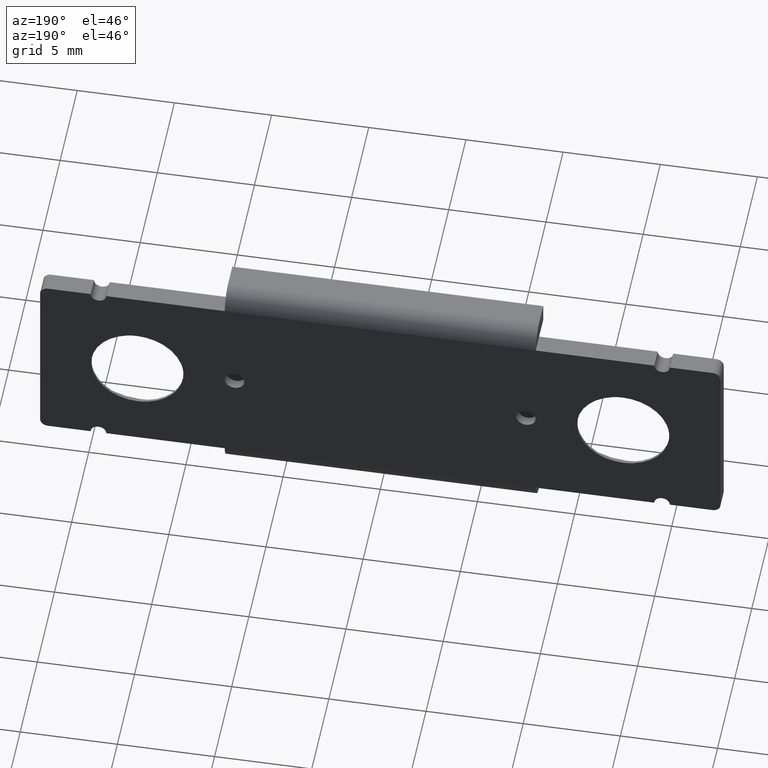
[diagram: clean part render]
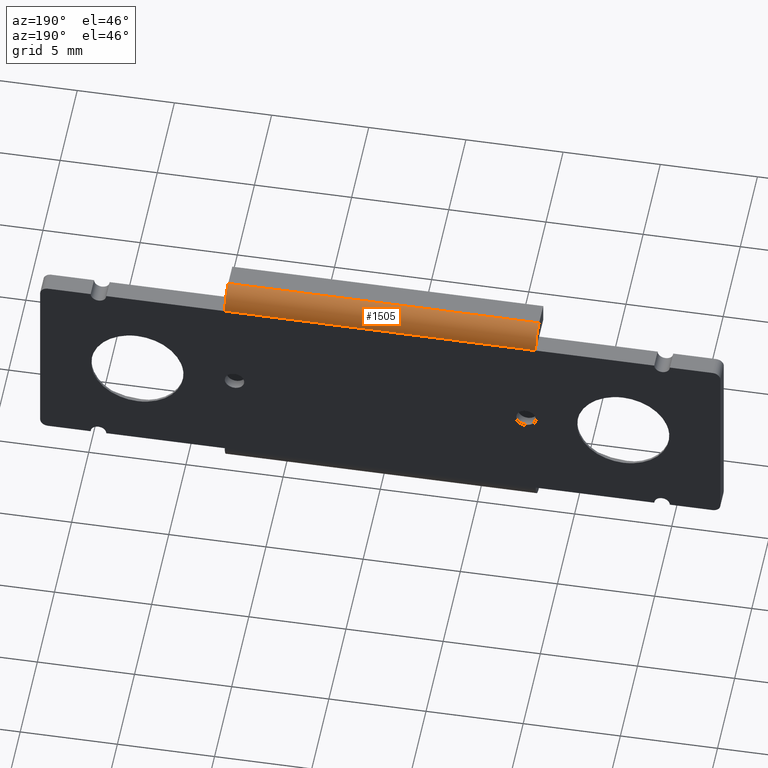
[diagram: same view with one face highlighted and labeled with its STEP entity id]
A machine part, auxiliary view. The second image highlights one B-rep face of the part: STEP entity #1505.
In plain terms, the highlighted face is a freeform B-spline surface patch.
Its self-contained STEP definition (entity closure, byte-faithful):
#1430=CARTESIAN_POINT('',(-8.0,-1.000000000000014,5.999999500000120));
#1431=VERTEX_POINT('',#1430);
#1438=CARTESIAN_POINT('',(8.0,-1.000000000000014,5.999999500000120));
#1439=VERTEX_POINT('',#1438);
#1445=CARTESIAN_POINT('',(8.0,-1.000000000000014,5.999999500000120));
#1446=CARTESIAN_POINT('',(-8.0,-1.000000000000014,5.999999500000120));
#1447=QUASI_UNIFORM_CURVE('',1,(#1445,#1446),.UNSPECIFIED.,.F.,.U.);
#1448=EDGE_CURVE('',#1439,#1431,#1447,.T.);
#1453=CARTESIAN_POINT('',(8.400000000000000,-0.000038072572701,4.991273464482590));
#1454=CARTESIAN_POINT('',(-8.410000000000000,-0.000038072572701,4.991273464482590));
#1455=CARTESIAN_POINT('',(8.400000000000000,0.009157250228167,6.045013469643136));
#1456=CARTESIAN_POINT('',(-8.410000000000002,0.009157250228167,6.045013469643136));
#1457=CARTESIAN_POINT('',(8.400000000000000,-1.043619886889336,5.999047699772165));
#1458=CARTESIAN_POINT('',(-8.410000000000000,-1.043619886889336,5.999047699772165));
#1466=(BOUNDED_SURFACE()B_SPLINE_SURFACE(1,2,((#1453,#1455,#1457),(#1454,#1456,#1458)),.UNSPECIFIED.,.F.,.F.,.U.)B_SPLINE_SURFACE_WITH_KNOTS((2,2),(3,3),(0.0,16.809999999999999),(0.0,1.0),.UNSPECIFIED.)GEOMETRIC_REPRESENTATION_ITEM()RATIONAL_B_SPLINE_SURFACE(((1.0,0.688354575693754,1.0),(1.0,0.688354575693754,1.0)))REPRESENTATION_ITEM('')SURFACE());
#1467=CARTESIAN_POINT('',(-8.0,-1.421085E-014,5.000000500000170));
#1468=VERTEX_POINT('',#1467);
#1469=CARTESIAN_POINT('',(-8.0,-1.421085E-014,5.000000500000170));
#1470=CARTESIAN_POINT('',(-8.000000000000002,-0.000000999999564,5.999999500000120));
#1471=CARTESIAN_POINT('',(-8.0,-1.000000000000014,5.999999500000120));
#1479=(BOUNDED_CURVE()B_SPLINE_CURVE(2,(#1469,#1470,#1471),.UNSPECIFIED.,.F.,.U.)CURVE()GEOMETRIC_REPRESENTATION_ITEM()QUASI_UNIFORM_CURVE()RATIONAL_B_SPLINE_CURVE((1.0,0.707107134739867,1.0))REPRESENTATION_ITEM(''));
#1480=EDGE_CURVE('',#1468,#1431,#1479,.T.);
#1481=ORIENTED_EDGE('',*,*,#1480,.T.);
#1482=ORIENTED_EDGE('',*,*,#1448,.F.);
#1483=CARTESIAN_POINT('',(8.0,0.0,5.0));
#1484=VERTEX_POINT('',#1483);
#1485=CARTESIAN_POINT('',(8.0,0.0,5.0));
#1486=CARTESIAN_POINT('',(8.0,-0.000000499999769,5.999999500000119));
#1487=CARTESIAN_POINT('',(8.0,-1.000000000000014,5.999999500000120));
#1495=(BOUNDED_CURVE()B_SPLINE_CURVE(2,(#1485,#1486,#1487),.UNSPECIFIED.,.F.,.U.)CURVE()GEOMETRIC_REPRESENTATION_ITEM()QUASI_UNIFORM_CURVE()RATIONAL_B_SPLINE_CURVE((1.0,0.707106957963178,1.0))REPRESENTATION_ITEM(''));
#1496=EDGE_CURVE('',#1484,#1439,#1495,.T.);
#1497=ORIENTED_EDGE('',*,*,#1496,.F.);
#1498=CARTESIAN_POINT('',(8.0,0.0,5.0));
#1499=CARTESIAN_POINT('',(-8.0,-1.421085E-014,5.000000500000170));
#1500=QUASI_UNIFORM_CURVE('',1,(#1498,#1499),.UNSPECIFIED.,.F.,.U.);
#1501=EDGE_CURVE('',#1484,#1468,#1500,.T.);
#1502=ORIENTED_EDGE('',*,*,#1501,.T.);
#1503=EDGE_LOOP('',(#1481,#1482,#1497,#1502));
#1504=FACE_OUTER_BOUND('',#1503,.T.);
#1505=ADVANCED_FACE('',(#1504),#1466,.T.);